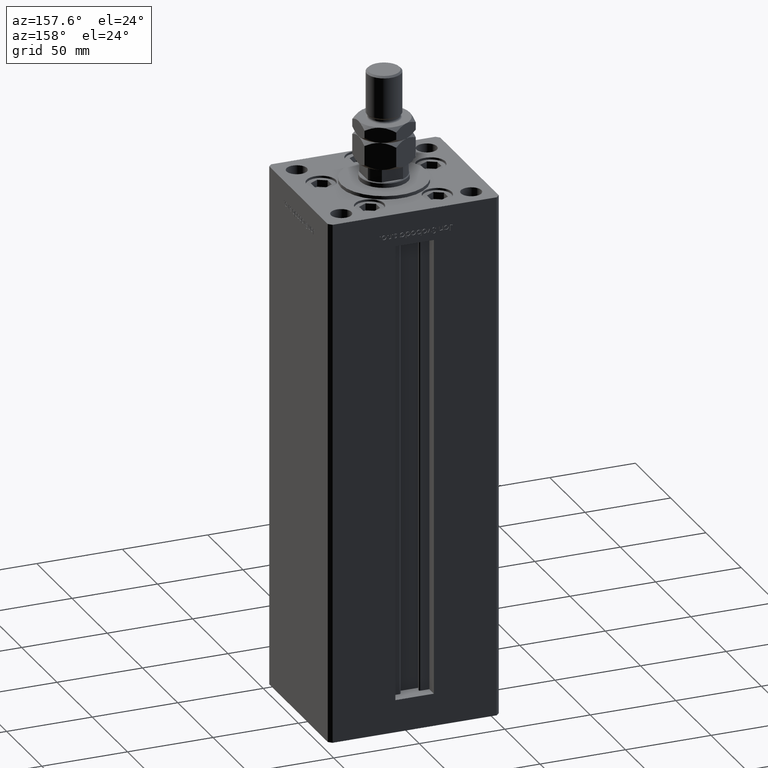
[diagram: clean part render]
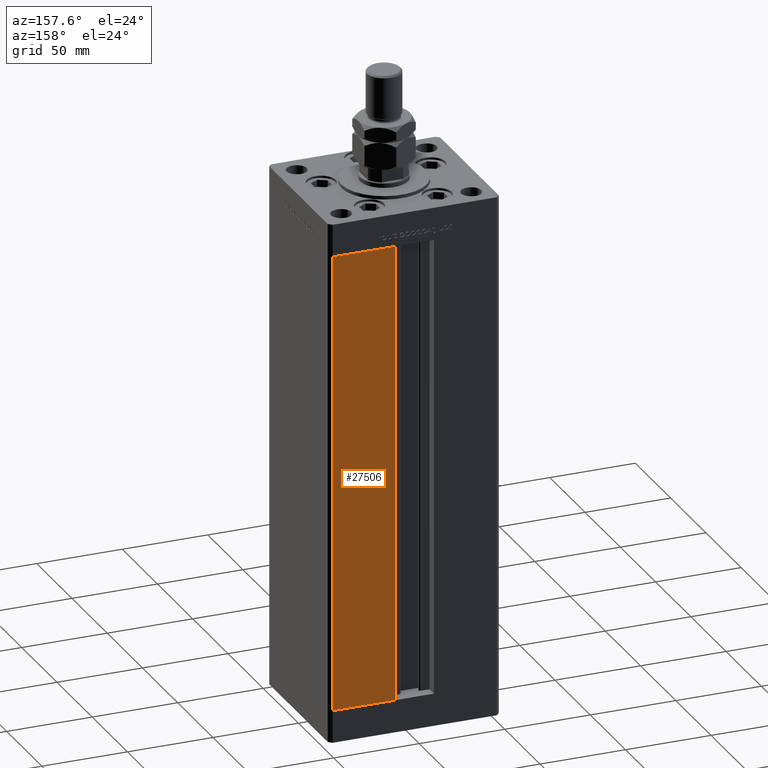
[diagram: same view with one face highlighted and labeled with its STEP entity id]
A machine part, auxiliary view. The second image highlights one B-rep face of the part: STEP entity #27506.
In plain terms, the highlighted planar face has unit normal (0, -1, 0).
Its self-contained STEP definition (entity closure, byte-faithful):
#2143 = CARTESIAN_POINT ( 'NONE',  ( 48.00000000000000711, 43.50000000000000000, 268.5000000000000000 ) ) ;
#2503 = ORIENTED_EDGE ( 'NONE', *, *, #10618, .T. ) ;
#3481 = DIRECTION ( 'NONE',  ( 0.000000000000000000, -1.000000000000000000, 0.000000000000000000 ) ) ;
#3794 = DIRECTION ( 'NONE',  ( -0.000000000000000000, -0.000000000000000000, -1.000000000000000000 ) ) ;
#3795 = ORIENTED_EDGE ( 'NONE', *, *, #6897, .T. ) ;
#5935 = CARTESIAN_POINT ( 'NONE',  ( 48.00000000000000711, 43.50000000000000000, 0.000000000000000000 ) ) ;
#6897 = EDGE_CURVE ( 'NONE', #20976, #6906, #30107, .T. ) ;
#6906 = VERTEX_POINT ( 'NONE', #27925 ) ;
#7779 = ORIENTED_EDGE ( 'NONE', *, *, #35530, .T. ) ;
#7825 = DIRECTION ( 'NONE',  ( 0.000000000000000000, -0.000000000000000000, -1.000000000000000000 ) ) ;
#10618 = EDGE_CURVE ( 'NONE', #49141, #20976, #45063, .T. ) ;
#12890 = VECTOR ( 'NONE', #52584, 1000.000000000000000 ) ;
#13525 = CARTESIAN_POINT ( 'NONE',  ( 11.24999999999999822, 43.50000000000000000, 0.000000000000000000 ) ) ;
#14799 = LINE ( 'NONE', #23226, #12890 ) ;
#15720 = FACE_OUTER_BOUND ( 'NONE', #41069, .T. ) ;
#16083 = ORIENTED_EDGE ( 'NONE', *, *, #38769, .T. ) ;
#20976 = VERTEX_POINT ( 'NONE', #21671 ) ;
#21671 = CARTESIAN_POINT ( 'NONE',  ( 11.24999999999999822, 43.50000000000000000, 0.000000000000000000 ) ) ;
#23226 = CARTESIAN_POINT ( 'NONE',  ( -11.24999999999999822, 43.50000000000000000, 268.5000000000000000 ) ) ;
#24681 = CARTESIAN_POINT ( 'NONE',  ( -11.24999999999999822, 43.50000000000000000, 0.000000000000000000 ) ) ;
#26578 = DIRECTION ( 'NONE',  ( -0.000000000000000000, -0.000000000000000000, 1.000000000000000000 ) ) ;
#26716 = VECTOR ( 'NONE', #3794, 1000.000000000000000 ) ;
#27506 = ADVANCED_FACE ( 'NONE', ( #15720 ), #45064, .F. ) ;
#27925 = CARTESIAN_POINT ( 'NONE',  ( 11.24999999999999112, 43.50000000000000000, 268.5000000000000000 ) ) ;
#30107 = LINE ( 'NONE', #13525, #38837 ) ;
#30907 = AXIS2_PLACEMENT_3D ( 'NONE', #37186, #3481, #7825 ) ;
#35530 = EDGE_CURVE ( 'NONE', #38705, #49141, #36703, .T. ) ;
#36703 = LINE ( 'NONE', #39985, #26716 ) ;
#37186 = CARTESIAN_POINT ( 'NONE',  ( -11.24999999999999822, 43.50000000000000000, 268.5000000000000000 ) ) ;
#38705 = VERTEX_POINT ( 'NONE', #2143 ) ;
#38769 = EDGE_CURVE ( 'NONE', #6906, #38705, #14799, .T. ) ;
#38837 = VECTOR ( 'NONE', #26578, 1000.000000000000000 ) ;
#39985 = CARTESIAN_POINT ( 'NONE',  ( 48.00000000000000711, 43.50000000000000000, 268.5000000000000000 ) ) ;
#40687 = VECTOR ( 'NONE', #53766, 1000.000000000000000 ) ;
#41069 = EDGE_LOOP ( 'NONE', ( #2503, #3795, #16083, #7779 ) ) ;
#45063 = LINE ( 'NONE', #24681, #40687 ) ;
#45064 = PLANE ( 'NONE',  #30907 ) ;
#49141 = VERTEX_POINT ( 'NONE', #5935 ) ;
#52584 = DIRECTION ( 'NONE',  ( 1.000000000000000000, 0.000000000000000000, 0.000000000000000000 ) ) ;
#53766 = DIRECTION ( 'NONE',  ( -1.000000000000000000, 0.000000000000000000, 0.000000000000000000 ) ) ;